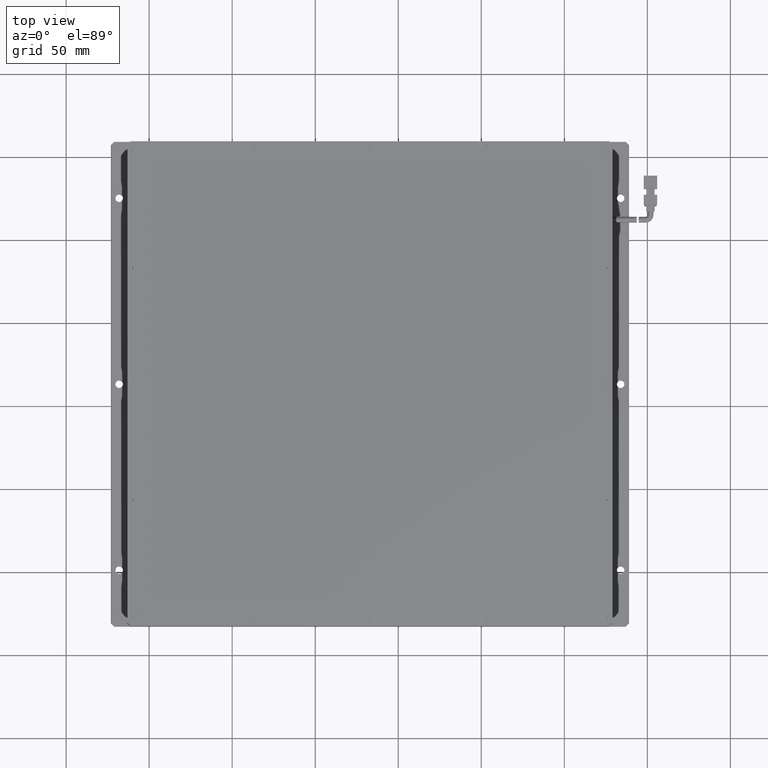
[diagram: clean part render]
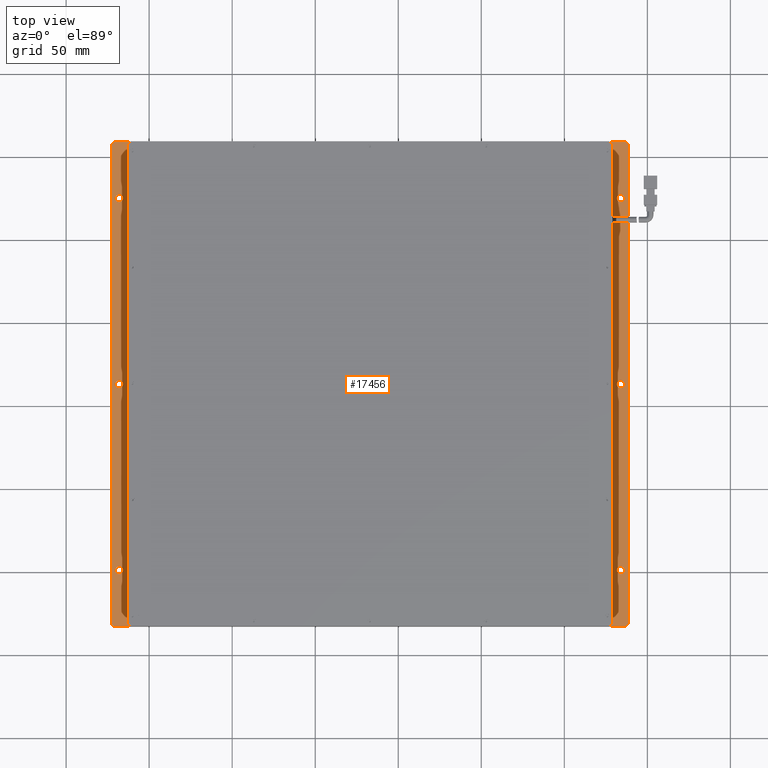
[diagram: same view with one face highlighted and labeled with its STEP entity id]
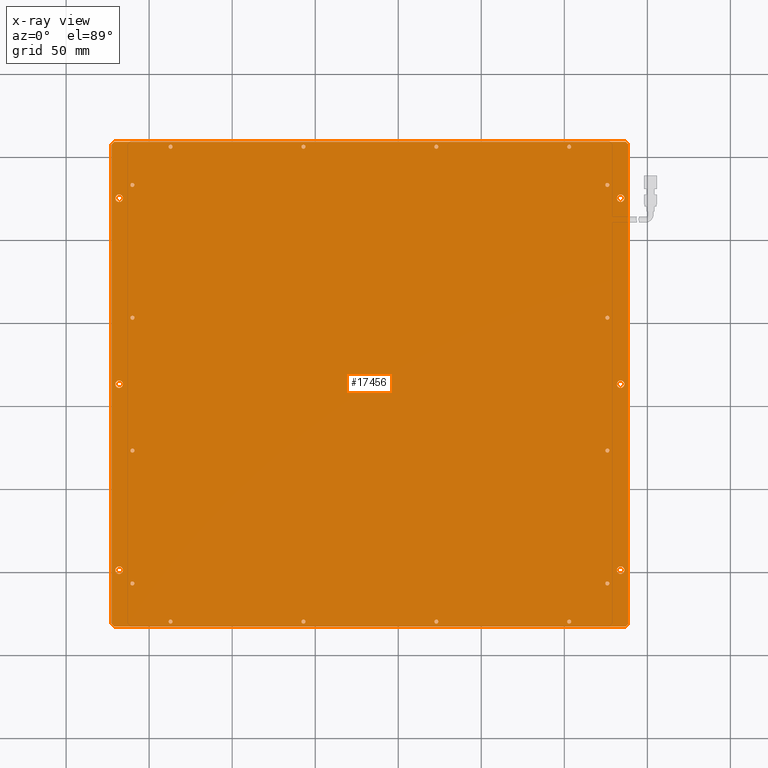
[diagram: x-ray of the same camera — body ghosted, the highlighted face saturated]
A machine part, top view. The second image highlights one B-rep face of the part: STEP entity #17456.
The next image is the same camera in x-ray: the body ghosted, the highlighted face saturated — about 0% of this face is hidden behind the body in this view.
In plain terms, the highlighted planar face has unit normal (0, 0, -1).
Its self-contained STEP definition (entity closure, byte-faithful):
#183 = VERTEX_POINT ( 'NONE', #15705 ) ;
#188 = AXIS2_PLACEMENT_3D ( 'NONE', #7715, #22728, #9895 ) ;
#394 = EDGE_CURVE ( 'NONE', #8376, #27718, #17113, .T. ) ;
#659 = ORIENTED_EDGE ( 'NONE', *, *, #2506, .F. ) ;
#726 = ORIENTED_EDGE ( 'NONE', *, *, #12483, .F. ) ;
#772 = AXIS2_PLACEMENT_3D ( 'NONE', #13796, #907, #15938 ) ;
#907 = DIRECTION ( 'NONE',  ( 0.0000000000000000000, 0.0000000000000000000, 1.000000000000000000 ) ) ;
#963 = VERTEX_POINT ( 'NONE', #26867 ) ;
#1010 = DIRECTION ( 'NONE',  ( 0.0000000000000000000, 0.0000000000000000000, 1.000000000000000000 ) ) ;
#1200 = ORIENTED_EDGE ( 'NONE', *, *, #394, .F. ) ;
#1239 = CARTESIAN_POINT ( 'NONE',  ( -111.2806771263419000, -26.73019543077340300, -8.500000000028194300 ) ) ;
#1253 = EDGE_CURVE ( 'NONE', #14094, #10913, #21665, .T. ) ;
#1269 = EDGE_LOOP ( 'NONE', ( #20714, #23029 ) ) ;
#1420 = CARTESIAN_POINT ( 'NONE',  ( -120.3306771263419000, -98.73019543077346300, -8.500000000028194300 ) ) ;
#1425 = DIRECTION ( 'NONE',  ( -0.0000000000000000000, -0.0000000000000000000, 1.000000000000000000 ) ) ;
#1521 = VERTEX_POINT ( 'NONE', #4793 ) ;
#1529 = DIRECTION ( 'NONE',  ( -1.000000000000000000, 0.0000000000000000000, 0.0000000000000000000 ) ) ;
#1558 = CARTESIAN_POINT ( 'NONE',  ( -88.28067712634189900, 156.2698045692266400, -8.500000000028194300 ) ) ;
#1604 = EDGE_CURVE ( 'NONE', #7886, #26907, #23648, .T. ) ;
#1617 = DIRECTION ( 'NONE',  ( -1.000000000000000000, 0.0000000000000000000, 0.0000000000000000000 ) ) ;
#1664 = CARTESIAN_POINT ( 'NONE',  ( -7.080677126341916100, 156.2698045692266400, -8.500000000028194300 ) ) ;
#1700 = AXIS2_PLACEMENT_3D ( 'NONE', #6667, #21718, #8816 ) ;
#1905 = CARTESIAN_POINT ( 'NONE',  ( 175.9193228736580700, -106.7301954307733900, -8.500000000028194300 ) ) ;
#1918 = DIRECTION ( 'NONE',  ( -1.000000000000000000, 0.0000000000000000000, 0.0000000000000000000 ) ) ;
#2017 = FACE_BOUND ( 'NONE', #9204, .T. ) ;
#2020 = DIRECTION ( 'NONE',  ( 0.0000000000000000000, 0.0000000000000000000, 1.000000000000000000 ) ) ;
#2101 = CIRCLE ( 'NONE', #4096, 2.249999999999988000 ) ;
#2106 = EDGE_LOOP ( 'NONE', ( #726, #8567, #25667, #16701, #22517, #7306, #17643, #14357 ) ) ;
#2196 = DIRECTION ( 'NONE',  ( -1.000000000000000000, 0.0000000000000000000, 0.0000000000000000000 ) ) ;
#2220 = DIRECTION ( 'NONE',  ( -0.0000000000000000000, -1.000000000000000000, -0.0000000000000000000 ) ) ;
#2282 = AXIS2_PLACEMENT_3D ( 'NONE', #24190, #11346, #26347 ) ;
#2292 = DIRECTION ( 'NONE',  ( 0.0000000000000000000, 0.0000000000000000000, 1.000000000000000000 ) ) ;
#2306 = CIRCLE ( 'NONE', #18244, 1.199999999999992600 ) ;
#2339 = CIRCLE ( 'NONE', #8155, 1.199999999999992600 ) ;
#2360 = AXIS2_PLACEMENT_3D ( 'NONE', #14334, #1425, #16472 ) ;
#2379 = CARTESIAN_POINT ( 'NONE',  ( 175.9193228736580700, 133.2698045692266100, -8.500000000028194300 ) ) ;
#2408 = VERTEX_POINT ( 'NONE', #2494 ) ;
#2494 = CARTESIAN_POINT ( 'NONE',  ( 154.1193228736580400, 156.2698045692266400, -8.500000000028194300 ) ) ;
#2506 = EDGE_CURVE ( 'NONE', #9255, #7993, #23895, .T. ) ;
#2680 = FACE_BOUND ( 'NONE', #6416, .T. ) ;
#2719 = AXIS2_PLACEMENT_3D ( 'NONE', #23853, #11002, #26002 ) ;
#2753 = ORIENTED_EDGE ( 'NONE', *, *, #13524, .F. ) ;
#2781 = DIRECTION ( 'NONE',  ( -0.0000000000000000000, -0.0000000000000000000, 1.000000000000000000 ) ) ;
#2783 = AXIS2_PLACEMENT_3D ( 'NONE', #6201, #21252, #8348 ) ;
#2796 = VERTEX_POINT ( 'NONE', #21166 ) ;
#3017 = CARTESIAN_POINT ( 'NONE',  ( -123.0806771263419100, 159.2698045692266400, -8.500000000028196100 ) ) ;
#3109 = DIRECTION ( 'NONE',  ( 0.0000000000000000000, 0.0000000000000000000, 1.000000000000000000 ) ) ;
#3115 = CARTESIAN_POINT ( 'NONE',  ( 181.6693228736581000, 13.26980456922655100, -8.500000000028194300 ) ) ;
#3121 = CARTESIAN_POINT ( 'NONE',  ( 186.9193228736580700, 159.2698045692266900, -8.500000000028196100 ) ) ;
#3222 = DIRECTION ( 'NONE',  ( 0.0000000000000000000, 0.0000000000000000000, 1.000000000000000000 ) ) ;
#3288 = DIRECTION ( 'NONE',  ( 1.000000000000000000, 0.0000000000000000000, 0.0000000000000000000 ) ) ;
#3296 = EDGE_CURVE ( 'NONE', #9677, #23926, #16155, .T. ) ;
#3338 = FACE_BOUND ( 'NONE', #19195, .T. ) ;
#3381 = DIRECTION ( 'NONE',  ( -1.000000000000000000, 0.0000000000000000000, -0.0000000000000000000 ) ) ;
#3468 = EDGE_LOOP ( 'NONE', ( #26339, #20685 ) ) ;
#3487 = DIRECTION ( 'NONE',  ( 0.7071067811865479100, 0.7071067811865472400, 0.0000000000000000000 ) ) ;
#3536 = AXIS2_PLACEMENT_3D ( 'NONE', #6379, #21433, #8529 ) ;
#3551 = ORIENTED_EDGE ( 'NONE', *, *, #18620, .F. ) ;
#3565 = VECTOR ( 'NONE', #22987, 1000.000000000000000 ) ;
#3705 = CARTESIAN_POINT ( 'NONE',  ( 181.6693228736581000, 125.2698045692265400, -8.500000000028194300 ) ) ;
#3774 = CARTESIAN_POINT ( 'NONE',  ( -118.0806771263419100, 13.26980456922663400, -8.500000000028194300 ) ) ;
#3777 = DIRECTION ( 'NONE',  ( -0.0000000000000000000, -0.0000000000000000000, 1.000000000000000000 ) ) ;
#3786 = ORIENTED_EDGE ( 'NONE', *, *, #11152, .F. ) ;
#3796 = DIRECTION ( 'NONE',  ( -1.000000000000000000, 0.0000000000000000000, 0.0000000000000000000 ) ) ;
#4011 = FACE_BOUND ( 'NONE', #26613, .T. ) ;
#4032 = CARTESIAN_POINT ( 'NONE',  ( 186.9193228736580500, -132.7301954307733600, -8.500000000028196100 ) ) ;
#4043 = DIRECTION ( 'NONE',  ( -1.000000000000000000, 0.0000000000000000000, 0.0000000000000000000 ) ) ;
#4096 = AXIS2_PLACEMENT_3D ( 'NONE', #8196, #23209, #10378 ) ;
#4160 = EDGE_CURVE ( 'NONE', #11330, #2408, #20063, .T. ) ;
#4168 = ORIENTED_EDGE ( 'NONE', *, *, #24643, .F. ) ;
#4283 = DIRECTION ( 'NONE',  ( -1.000000000000000000, 0.0000000000000000000, 0.0000000000000000000 ) ) ;
#4691 = EDGE_LOOP ( 'NONE', ( #14891, #10501 ) ) ;
#4722 = ORIENTED_EDGE ( 'NONE', *, *, #24238, .F. ) ;
#4793 = CARTESIAN_POINT ( 'NONE',  ( 174.7193228736580900, -26.73019543077340300, -8.500000000028194300 ) ) ;
#4912 = CARTESIAN_POINT ( 'NONE',  ( -5.880677126341924000, 156.2698045692266400, -8.500000000028194300 ) ) ;
#5127 = EDGE_CURVE ( 'NONE', #21371, #14588, #5588, .T. ) ;
#5137 = CARTESIAN_POINT ( 'NONE',  ( 174.7193228736580900, 53.26980456922658600, -8.500000000028194300 ) ) ;
#5155 = DIRECTION ( 'NONE',  ( -1.000000000000000000, 0.0000000000000000000, -0.0000000000000000000 ) ) ;
#5215 = VECTOR ( 'NONE', #11283, 1000.000000000000000 ) ;
#5345 = FACE_BOUND ( 'NONE', #4691, .T. ) ;
#5377 = CARTESIAN_POINT ( 'NONE',  ( 183.9193228736580700, 125.2698045692265400, -8.500000000028194300 ) ) ;
#5410 = EDGE_CURVE ( 'NONE', #14268, #9067, #21689, .T. ) ;
#5430 = VERTEX_POINT ( 'NONE', #26778 ) ;
#5588 = CIRCLE ( 'NONE', #24032, 2.249999999999974200 ) ;
#5872 = CIRCLE ( 'NONE', #3536, 1.199999999999992600 ) ;
#5876 = DIRECTION ( 'NONE',  ( 1.000000000000000000, 0.0000000000000000000, 0.0000000000000000000 ) ) ;
#5885 = CARTESIAN_POINT ( 'NONE',  ( 177.1193228736580600, 133.2698045692266100, -8.500000000028194300 ) ) ;
#5894 = CARTESIAN_POINT ( 'NONE',  ( -87.08067712634191100, -129.7301954307733600, -8.500000000028194300 ) ) ;
#5930 = DIRECTION ( 'NONE',  ( 1.000000000000000000, 0.0000000000000000000, 0.0000000000000000000 ) ) ;
#5953 = EDGE_CURVE ( 'NONE', #22316, #19056, #9853, .T. ) ;
#6005 = CARTESIAN_POINT ( 'NONE',  ( 175.9193228736580700, -106.7301954307733900, -8.500000000028194300 ) ) ;
#6060 = CARTESIAN_POINT ( 'NONE',  ( -121.0806771263419000, -132.7301954307733600, -8.500000000028196100 ) ) ;
#6065 = DIRECTION ( 'NONE',  ( 0.0000000000000000000, 0.0000000000000000000, 1.000000000000000000 ) ) ;
#6149 = DIRECTION ( 'NONE',  ( 0.0000000000000000000, 0.0000000000000000000, 1.000000000000000000 ) ) ;
#6201 = CARTESIAN_POINT ( 'NONE',  ( 72.91932287365810300, -129.7301954307733600, -8.500000000028194300 ) ) ;
#6250 = CARTESIAN_POINT ( 'NONE',  ( 152.9193228736580500, 156.2698045692266400, -8.500000000028194300 ) ) ;
#6296 = EDGE_CURVE ( 'NONE', #7993, #9255, #16786, .T. ) ;
#6330 = CIRCLE ( 'NONE', #23173, 2.249999999999974200 ) ;
#6379 = CARTESIAN_POINT ( 'NONE',  ( -110.0806771263419100, -106.7301954307733900, -8.500000000028194300 ) ) ;
#6416 = EDGE_LOOP ( 'NONE', ( #1200, #12586 ) ) ;
#6455 = CARTESIAN_POINT ( 'NONE',  ( -118.0806771263419100, -98.73019543077346300, -8.500000000028194300 ) ) ;
#6487 = CARTESIAN_POINT ( 'NONE',  ( 177.1193228736580600, -106.7301954307733900, -8.500000000028194300 ) ) ;
#6566 = CIRCLE ( 'NONE', #2783, 1.199999999999978900 ) ;
#6587 = DIRECTION ( 'NONE',  ( 0.0000000000000000000, 0.0000000000000000000, 1.000000000000000000 ) ) ;
#6667 = CARTESIAN_POINT ( 'NONE',  ( 183.9193228736580700, 13.26980456922655100, -8.500000000028194300 ) ) ;
#6799 = EDGE_LOOP ( 'NONE', ( #3786, #26724 ) ) ;
#6836 = CIRCLE ( 'NONE', #12985, 1.199999999999978900 ) ;
#6951 = CARTESIAN_POINT ( 'NONE',  ( 177.1193228736580600, -26.73019543077340300, -8.500000000028194300 ) ) ;
#7038 = CIRCLE ( 'NONE', #16492, 1.199999999999978900 ) ;
#7065 = CIRCLE ( 'NONE', #19862, 1.199999999999992600 ) ;
#7124 = ORIENTED_EDGE ( 'NONE', *, *, #10925, .F. ) ;
#7199 = VERTEX_POINT ( 'NONE', #1239 ) ;
#7241 = PLANE ( 'NONE',  #25964 ) ;
#7306 = ORIENTED_EDGE ( 'NONE', *, *, #5410, .F. ) ;
#7307 = CIRCLE ( 'NONE', #25976, 1.199999999999978900 ) ;
#7350 = CARTESIAN_POINT ( 'NONE',  ( 188.4193228736579900, 159.2698045692266400, -8.500000000028196100 ) ) ;
#7501 = DIRECTION ( 'NONE',  ( 0.0000000000000000000, 0.0000000000000000000, 1.000000000000000000 ) ) ;
#7539 = DIRECTION ( 'NONE',  ( 1.000000000000000000, 0.0000000000000000000, 0.0000000000000000000 ) ) ;
#7666 = ORIENTED_EDGE ( 'NONE', *, *, #20280, .F. ) ;
#7690 = FACE_BOUND ( 'NONE', #13665, .T. ) ;
#7715 = CARTESIAN_POINT ( 'NONE',  ( -110.0806771263419100, 53.26980456922658600, -8.500000000028194300 ) ) ;
#7773 = CARTESIAN_POINT ( 'NONE',  ( -123.0806771263419100, -132.7301954307733600, -8.500000000028196100 ) ) ;
#7879 = AXIS2_PLACEMENT_3D ( 'NONE', #6005, #16572, #16663 ) ;
#7886 = VERTEX_POINT ( 'NONE', #14640 ) ;
#7890 = DIRECTION ( 'NONE',  ( 0.0000000000000000000, 0.0000000000000000000, 1.000000000000000000 ) ) ;
#7910 = LINE ( 'NONE', #21199, #13715 ) ;
#7993 = VERTEX_POINT ( 'NONE', #5137 ) ;
#8035 = CARTESIAN_POINT ( 'NONE',  ( -120.3306771263419000, 125.2698045692265900, -8.500000000028194300 ) ) ;
#8039 = DIRECTION ( 'NONE',  ( -1.000000000000000000, 0.0000000000000000000, 0.0000000000000000000 ) ) ;
#8081 = CIRCLE ( 'NONE', #11781, 1.199999999999992600 ) ;
#8135 = CIRCLE ( 'NONE', #9470, 1.199999999999992600 ) ;
#8155 = AXIS2_PLACEMENT_3D ( 'NONE', #11954, #26922, #14151 ) ;
#8185 = EDGE_CURVE ( 'NONE', #7199, #27043, #8135, .T. ) ;
#8196 = CARTESIAN_POINT ( 'NONE',  ( -118.0806771263419100, 125.2698045692265900, -8.500000000028194300 ) ) ;
#8217 = ORIENTED_EDGE ( 'NONE', *, *, #17558, .F. ) ;
#8231 = CARTESIAN_POINT ( 'NONE',  ( 174.7193228736580900, -106.7301954307733900, -8.500000000028194300 ) ) ;
#8251 = AXIS2_PLACEMENT_3D ( 'NONE', #14910, #2020, #17052 ) ;
#8263 = CARTESIAN_POINT ( 'NONE',  ( 152.9193228736580500, -129.7301954307733600, -8.500000000028194300 ) ) ;
#8348 = DIRECTION ( 'NONE',  ( -1.000000000000000000, 0.0000000000000000000, 0.0000000000000000000 ) ) ;
#8353 = FACE_BOUND ( 'NONE', #3468, .T. ) ;
#8364 = EDGE_LOOP ( 'NONE', ( #4722, #11121 ) ) ;
#8376 = VERTEX_POINT ( 'NONE', #13369 ) ;
#8378 = CARTESIAN_POINT ( 'NONE',  ( 175.9193228736580700, -26.73019543077340300, -8.500000000028194300 ) ) ;
#8529 = DIRECTION ( 'NONE',  ( -1.000000000000000000, 0.0000000000000000000, 0.0000000000000000000 ) ) ;
#8567 = ORIENTED_EDGE ( 'NONE', *, *, #24589, .F. ) ;
#8610 = DIRECTION ( 'NONE',  ( 1.000000000000000000, 0.0000000000000000000, 0.0000000000000000000 ) ) ;
#8612 = ORIENTED_EDGE ( 'NONE', *, *, #1253, .F. ) ;
#8697 = CARTESIAN_POINT ( 'NONE',  ( -85.88067712634190800, 156.2698045692266400, -8.500000000028194300 ) ) ;
#8792 = CARTESIAN_POINT ( 'NONE',  ( -87.08067712634191100, 156.2698045692266400, -8.500000000028194300 ) ) ;
#8810 = CARTESIAN_POINT ( 'NONE',  ( -122.5806771263419100, -131.2301954307733900, -8.500000000028196100 ) ) ;
#8816 = DIRECTION ( 'NONE',  ( 1.000000000000000000, 0.0000000000000000000, 0.0000000000000000000 ) ) ;
#8850 = VERTEX_POINT ( 'NONE', #25917 ) ;
#8880 = EDGE_LOOP ( 'NONE', ( #17324, #19768 ) ) ;
#8886 = CIRCLE ( 'NONE', #1700, 2.249999999999974200 ) ;
#9015 = CARTESIAN_POINT ( 'NONE',  ( -115.8306771263419100, 13.26980456922663400, -8.500000000028194300 ) ) ;
#9026 = FACE_BOUND ( 'NONE', #11341, .T. ) ;
#9067 = VERTEX_POINT ( 'NONE', #3121 ) ;
#9092 = CARTESIAN_POINT ( 'NONE',  ( -110.0806771263419100, -106.7301954307733900, -8.500000000028194300 ) ) ;
#9204 = EDGE_LOOP ( 'NONE', ( #12340, #9710 ) ) ;
#9205 = ORIENTED_EDGE ( 'NONE', *, *, #10751, .F. ) ;
#9208 = VERTEX_POINT ( 'NONE', #19301 ) ;
#9238 = LINE ( 'NONE', #18562, #15038 ) ;
#9240 = CIRCLE ( 'NONE', #13668, 1.199999999999978900 ) ;
#9255 = VERTEX_POINT ( 'NONE', #23759 ) ;
#9470 = AXIS2_PLACEMENT_3D ( 'NONE', #19016, #6065, #21138 ) ;
#9646 = ORIENTED_EDGE ( 'NONE', *, *, #4160, .F. ) ;
#9677 = VERTEX_POINT ( 'NONE', #5885 ) ;
#9710 = ORIENTED_EDGE ( 'NONE', *, *, #25540, .F. ) ;
#9716 = FACE_BOUND ( 'NONE', #8364, .T. ) ;
#9732 = VERTEX_POINT ( 'NONE', #6060 ) ;
#9775 = VECTOR ( 'NONE', #3381, 1000.000000000000000 ) ;
#9853 = LINE ( 'NONE', #7350, #15610 ) ;
#9895 = DIRECTION ( 'NONE',  ( -1.000000000000000000, 0.0000000000000000000, 0.0000000000000000000 ) ) ;
#9968 = CARTESIAN_POINT ( 'NONE',  ( 175.9193228736580700, 53.26980456922658600, -8.500000000028194300 ) ) ;
#10112 = VERTEX_POINT ( 'NONE', #20366 ) ;
#10129 = CARTESIAN_POINT ( 'NONE',  ( 151.7193228736580900, 156.2698045692266400, -8.500000000028194300 ) ) ;
#10134 = CARTESIAN_POINT ( 'NONE',  ( 188.4193228736579900, -131.2301954307735300, -8.500000000028196100 ) ) ;
#10378 = DIRECTION ( 'NONE',  ( 1.000000000000000000, 0.0000000000000000000, 0.0000000000000000000 ) ) ;
#10403 = FACE_BOUND ( 'NONE', #10537, .T. ) ;
#10439 = DIRECTION ( 'NONE',  ( -1.000000000000000000, 0.0000000000000000000, 0.0000000000000000000 ) ) ;
#10444 = CARTESIAN_POINT ( 'NONE',  ( 186.1693228736580700, 125.2698045692265400, -8.500000000028194300 ) ) ;
#10455 = CIRCLE ( 'NONE', #8251, 1.199999999999992600 ) ;
#10470 = DIRECTION ( 'NONE',  ( 0.0000000000000000000, 1.000000000000000000, 0.0000000000000000000 ) ) ;
#10489 = AXIS2_PLACEMENT_3D ( 'NONE', #2379, #2292, #2196 ) ;
#10501 = ORIENTED_EDGE ( 'NONE', *, *, #14582, .F. ) ;
#10537 = EDGE_LOOP ( 'NONE', ( #16415, #4168 ) ) ;
#10565 = DIRECTION ( 'NONE',  ( -1.000000000000000000, 0.0000000000000000000, 0.0000000000000000000 ) ) ;
#10641 = EDGE_CURVE ( 'NONE', #19039, #8850, #27068, .T. ) ;
#10661 = EDGE_CURVE ( 'NONE', #14588, #21371, #24404, .T. ) ;
#10751 = EDGE_CURVE ( 'NONE', #19754, #27326, #14056, .T. ) ;
#10906 = VERTEX_POINT ( 'NONE', #17229 ) ;
#10913 = VERTEX_POINT ( 'NONE', #6487 ) ;
#10917 = CARTESIAN_POINT ( 'NONE',  ( -122.5806771263419100, 157.7698045692266400, -8.500000000028196100 ) ) ;
#10925 = EDGE_CURVE ( 'NONE', #27815, #18328, #8886, .T. ) ;
#10990 = DIRECTION ( 'NONE',  ( -1.000000000000000000, 0.0000000000000000000, 0.0000000000000000000 ) ) ;
#11002 = DIRECTION ( 'NONE',  ( 0.0000000000000000000, 0.0000000000000000000, 1.000000000000000000 ) ) ;
#11121 = ORIENTED_EDGE ( 'NONE', *, *, #27293, .F. ) ;
#11152 = EDGE_CURVE ( 'NONE', #2796, #24999, #22313, .T. ) ;
#11248 = CARTESIAN_POINT ( 'NONE',  ( -85.88067712634190800, -129.7301954307733600, -8.500000000028194300 ) ) ;
#11283 = DIRECTION ( 'NONE',  ( 1.000000000000000000, -0.0000000000000000000, 0.0000000000000000000 ) ) ;
#11284 = DIRECTION ( 'NONE',  ( -1.000000000000000000, 0.0000000000000000000, 0.0000000000000000000 ) ) ;
#11330 = VERTEX_POINT ( 'NONE', #10129 ) ;
#11341 = EDGE_LOOP ( 'NONE', ( #23664, #659 ) ) ;
#11346 = DIRECTION ( 'NONE',  ( -0.0000000000000000000, -0.0000000000000000000, 1.000000000000000000 ) ) ;
#11403 = CARTESIAN_POINT ( 'NONE',  ( -87.08067712634191100, 156.2698045692266400, -8.500000000028194300 ) ) ;
#11430 = AXIS2_PLACEMENT_3D ( 'NONE', #6250, #6149, #4283 ) ;
#11552 = EDGE_LOOP ( 'NONE', ( #9646, #13995 ) ) ;
#11772 = CARTESIAN_POINT ( 'NONE',  ( 154.1193228736580400, -129.7301954307733600, -8.500000000028194300 ) ) ;
#11781 = AXIS2_PLACEMENT_3D ( 'NONE', #11403, #26405, #13608 ) ;
#11792 = ORIENTED_EDGE ( 'NONE', *, *, #12433, .F. ) ;
#11814 = CARTESIAN_POINT ( 'NONE',  ( -7.080677126341916100, 156.2698045692266400, -8.500000000028194300 ) ) ;
#11820 = ORIENTED_EDGE ( 'NONE', *, *, #15349, .F. ) ;
#11833 = VERTEX_POINT ( 'NONE', #1558 ) ;
#11866 = AXIS2_PLACEMENT_3D ( 'NONE', #1664, #16709, #3796 ) ;
#11943 = CARTESIAN_POINT ( 'NONE',  ( 175.9193228736580700, -26.73019543077340300, -8.500000000028194300 ) ) ;
#11954 = CARTESIAN_POINT ( 'NONE',  ( -7.080677126341916100, -129.7301954307733600, -8.500000000028194300 ) ) ;
#12063 = DIRECTION ( 'NONE',  ( 0.0000000000000000000, 0.0000000000000000000, 1.000000000000000000 ) ) ;
#12280 = EDGE_LOOP ( 'NONE', ( #9205, #19672 ) ) ;
#12281 = EDGE_LOOP ( 'NONE', ( #16717, #11820 ) ) ;
#12340 = ORIENTED_EDGE ( 'NONE', *, *, #1604, .F. ) ;
#12433 = EDGE_CURVE ( 'NONE', #23926, #9677, #7038, .T. ) ;
#12483 = EDGE_CURVE ( 'NONE', #9732, #15149, #26506, .T. ) ;
#12508 = CARTESIAN_POINT ( 'NONE',  ( 188.4193228736579900, -131.2301954307736200, -8.500000000028185500 ) ) ;
#12586 = ORIENTED_EDGE ( 'NONE', *, *, #19545, .F. ) ;
#12597 = EDGE_CURVE ( 'NONE', #9208, #27668, #15464, .T. ) ;
#12613 = VERTEX_POINT ( 'NONE', #8697 ) ;
#12656 = CARTESIAN_POINT ( 'NONE',  ( -8.280677126341910100, -129.7301954307733600, -8.500000000028194300 ) ) ;
#12711 = AXIS2_PLACEMENT_3D ( 'NONE', #16034, #3109, #18193 ) ;
#12985 = AXIS2_PLACEMENT_3D ( 'NONE', #8263, #23268, #10439 ) ;
#13007 = CIRCLE ( 'NONE', #24211, 1.199999999999992600 ) ;
#13369 = CARTESIAN_POINT ( 'NONE',  ( -115.8306771263419100, 125.2698045692265900, -8.500000000028194300 ) ) ;
#13395 = EDGE_CURVE ( 'NONE', #8850, #19039, #13007, .T. ) ;
#13473 = FACE_BOUND ( 'NONE', #8880, .T. ) ;
#13504 = AXIS2_PLACEMENT_3D ( 'NONE', #27284, #14510, #1617 ) ;
#13524 = EDGE_CURVE ( 'NONE', #19821, #963, #5872, .T. ) ;
#13528 = CARTESIAN_POINT ( 'NONE',  ( -118.0806771263419100, 125.2698045692265900, -8.500000000028194300 ) ) ;
#13608 = DIRECTION ( 'NONE',  ( -1.000000000000000000, 0.0000000000000000000, 0.0000000000000000000 ) ) ;
#13650 = DIRECTION ( 'NONE',  ( 0.7071067811865606700, -0.7071067811865344700, 0.0000000000000000000 ) ) ;
#13660 = CARTESIAN_POINT ( 'NONE',  ( -8.280677126341910100, 156.2698045692266400, -8.500000000028194300 ) ) ;
#13665 = EDGE_LOOP ( 'NONE', ( #7124, #26327 ) ) ;
#13668 = AXIS2_PLACEMENT_3D ( 'NONE', #1905, #16929, #4043 ) ;
#13686 = DIRECTION ( 'NONE',  ( -0.0000000000000000000, -0.0000000000000000000, 1.000000000000000000 ) ) ;
#13715 = VECTOR ( 'NONE', #10470, 1000.000000000000000 ) ;
#13796 = CARTESIAN_POINT ( 'NONE',  ( -7.080677126341916100, -129.7301954307733600, -8.500000000028194300 ) ) ;
#13908 = CARTESIAN_POINT ( 'NONE',  ( -110.0806771263419100, 133.2698045692266100, -8.500000000028194300 ) ) ;
#13989 = DIRECTION ( 'NONE',  ( -1.000000000000000000, 0.0000000000000000000, 0.0000000000000000000 ) ) ;
#13994 = CIRCLE ( 'NONE', #2719, 1.199999999999978900 ) ;
#13995 = ORIENTED_EDGE ( 'NONE', *, *, #19980, .F. ) ;
#14029 = DIRECTION ( 'NONE',  ( -1.000000000000000000, 0.0000000000000000000, 0.0000000000000000000 ) ) ;
#14056 = CIRCLE ( 'NONE', #14336, 2.249999999999988000 ) ;
#14094 = VERTEX_POINT ( 'NONE', #8231 ) ;
#14147 = DIRECTION ( 'NONE',  ( -1.000000000000000000, 0.0000000000000000000, 0.0000000000000000000 ) ) ;
#14151 = DIRECTION ( 'NONE',  ( -1.000000000000000000, 0.0000000000000000000, 0.0000000000000000000 ) ) ;
#14156 = FACE_BOUND ( 'NONE', #1269, .T. ) ;
#14165 = AXIS2_PLACEMENT_3D ( 'NONE', #3774, #18863, #5930 ) ;
#14268 = VERTEX_POINT ( 'NONE', #26060 ) ;
#14334 = CARTESIAN_POINT ( 'NONE',  ( -118.0806771263419100, -98.73019543077346300, -8.500000000028194300 ) ) ;
#14336 = AXIS2_PLACEMENT_3D ( 'NONE', #16685, #3777, #18866 ) ;
#14357 = ORIENTED_EDGE ( 'NONE', *, *, #22558, .F. ) ;
#14425 = DIRECTION ( 'NONE',  ( 0.0000000000000000000, 0.0000000000000000000, 1.000000000000000000 ) ) ;
#14469 = VERTEX_POINT ( 'NONE', #24377 ) ;
#14502 = VERTEX_POINT ( 'NONE', #24834 ) ;
#14510 = DIRECTION ( 'NONE',  ( 0.0000000000000000000, 0.0000000000000000000, 1.000000000000000000 ) ) ;
#14512 = CIRCLE ( 'NONE', #188, 1.199999999999992600 ) ;
#14582 = EDGE_CURVE ( 'NONE', #21056, #23299, #20919, .T. ) ;
#14588 = VERTEX_POINT ( 'NONE', #3705 ) ;
#14604 = DIRECTION ( 'NONE',  ( -0.7071067811865520100, 0.7071067811865431300, 0.0000000000000000000 ) ) ;
#14640 = CARTESIAN_POINT ( 'NONE',  ( 186.1693228736580700, -98.73019543077344900, -8.500000000028194300 ) ) ;
#14816 = DIRECTION ( 'NONE',  ( 0.0000000000000000000, 0.0000000000000000000, 1.000000000000000000 ) ) ;
#14824 = FACE_BOUND ( 'NONE', #18635, .T. ) ;
#14867 = EDGE_CURVE ( 'NONE', #5430, #10112, #14512, .T. ) ;
#14891 = ORIENTED_EDGE ( 'NONE', *, *, #19398, .F. ) ;
#14910 = CARTESIAN_POINT ( 'NONE',  ( -110.0806771263419100, 53.26980456922658600, -8.500000000028194300 ) ) ;
#14970 = ORIENTED_EDGE ( 'NONE', *, *, #15193, .F. ) ;
#15038 = VECTOR ( 'NONE', #3487, 1000.000000000000000 ) ;
#15045 = EDGE_CURVE ( 'NONE', #10112, #5430, #10455, .T. ) ;
#15047 = EDGE_LOOP ( 'NONE', ( #7666, #22891 ) ) ;
#15149 = VERTEX_POINT ( 'NONE', #8810 ) ;
#15152 = VECTOR ( 'NONE', #14604, 1000.000000000000000 ) ;
#15193 = EDGE_CURVE ( 'NONE', #963, #19821, #17519, .T. ) ;
#15349 = EDGE_CURVE ( 'NONE', #27668, #9208, #18040, .T. ) ;
#15464 = CIRCLE ( 'NONE', #23090, 2.249999999999988000 ) ;
#15469 = AXIS2_PLACEMENT_3D ( 'NONE', #20418, #7501, #22523 ) ;
#15484 = FACE_BOUND ( 'NONE', #24341, .T. ) ;
#15610 = VECTOR ( 'NONE', #2220, 1000.000000000000000 ) ;
#15675 = CARTESIAN_POINT ( 'NONE',  ( 183.9193228736580700, -98.73019543077344900, -8.500000000028194300 ) ) ;
#15705 = CARTESIAN_POINT ( 'NONE',  ( -5.880677126341924000, -129.7301954307733600, -8.500000000028194300 ) ) ;
#15747 = EDGE_CURVE ( 'NONE', #20246, #20792, #13994, .T. ) ;
#15938 = DIRECTION ( 'NONE',  ( -1.000000000000000000, 0.0000000000000000000, 0.0000000000000000000 ) ) ;
#15981 = CARTESIAN_POINT ( 'NONE',  ( 188.4193228736579900, 157.7698045692267200, -8.500000000028197900 ) ) ;
#16034 = CARTESIAN_POINT ( 'NONE',  ( -87.08067712634191100, -129.7301954307733600, -8.500000000028194300 ) ) ;
#16065 = DIRECTION ( 'NONE',  ( -1.000000000000000000, 0.0000000000000000000, 0.0000000000000000000 ) ) ;
#16155 = CIRCLE ( 'NONE', #10489, 1.199999999999978900 ) ;
#16281 = AXIS2_PLACEMENT_3D ( 'NONE', #13908, #1010, #16065 ) ;
#16407 = AXIS2_PLACEMENT_3D ( 'NONE', #9092, #24124, #11284 ) ;
#16415 = ORIENTED_EDGE ( 'NONE', *, *, #15747, .F. ) ;
#16472 = DIRECTION ( 'NONE',  ( 1.000000000000000000, 0.0000000000000000000, 0.0000000000000000000 ) ) ;
#16492 = AXIS2_PLACEMENT_3D ( 'NONE', #27196, #14425, #1529 ) ;
#16520 = CIRCLE ( 'NONE', #14165, 2.249999999999988000 ) ;
#16572 = DIRECTION ( 'NONE',  ( 0.0000000000000000000, 0.0000000000000000000, 1.000000000000000000 ) ) ;
#16595 = ORIENTED_EDGE ( 'NONE', *, *, #21699, .F. ) ;
#16619 = CARTESIAN_POINT ( 'NONE',  ( 175.9193228736580700, 53.26980456922658600, -8.500000000028194300 ) ) ;
#16652 = ORIENTED_EDGE ( 'NONE', *, *, #8185, .F. ) ;
#16663 = DIRECTION ( 'NONE',  ( -1.000000000000000000, 0.0000000000000000000, 0.0000000000000000000 ) ) ;
#16685 = CARTESIAN_POINT ( 'NONE',  ( -118.0806771263419100, 13.26980456922663400, -8.500000000028194300 ) ) ;
#16701 = ORIENTED_EDGE ( 'NONE', *, *, #5953, .F. ) ;
#16709 = DIRECTION ( 'NONE',  ( 0.0000000000000000000, 0.0000000000000000000, 1.000000000000000000 ) ) ;
#16717 = ORIENTED_EDGE ( 'NONE', *, *, #12597, .F. ) ;
#16786 = CIRCLE ( 'NONE', #26933, 1.199999999999978900 ) ;
#16929 = DIRECTION ( 'NONE',  ( 0.0000000000000000000, 0.0000000000000000000, 1.000000000000000000 ) ) ;
#16985 = EDGE_CURVE ( 'NONE', #12613, #11833, #8081, .T. ) ;
#17052 = DIRECTION ( 'NONE',  ( -1.000000000000000000, 0.0000000000000000000, 0.0000000000000000000 ) ) ;
#17113 = CIRCLE ( 'NONE', #17824, 2.249999999999988000 ) ;
#17143 = EDGE_CURVE ( 'NONE', #27326, #19754, #16520, .T. ) ;
#17209 = CARTESIAN_POINT ( 'NONE',  ( 71.71932287365811500, 156.2698045692266400, -8.500000000028194300 ) ) ;
#17223 = CIRCLE ( 'NONE', #772, 1.199999999999992600 ) ;
#17229 = CARTESIAN_POINT ( 'NONE',  ( 74.11932287365807800, -129.7301954307733600, -8.500000000028194300 ) ) ;
#17324 = ORIENTED_EDGE ( 'NONE', *, *, #5127, .F. ) ;
#17402 = VERTEX_POINT ( 'NONE', #6951 ) ;
#17441 = CARTESIAN_POINT ( 'NONE',  ( 181.6693228736581000, -98.73019543077344900, -8.500000000028194300 ) ) ;
#17456 = ADVANCED_FACE ( 'NONE', ( #21175, #10403, #5345, #26843, #15484, #9716, #4011, #26168, #20515, #14824, #9026, #3338, #25486, #19833, #14156, #8353, #2680, #24831, #19186, #13473, #7690, #2017, #24156 ), #7241, .F. ) ;
#17519 = CIRCLE ( 'NONE', #16407, 1.199999999999992600 ) ;
#17558 = EDGE_CURVE ( 'NONE', #183, #24218, #2339, .T. ) ;
#17643 = ORIENTED_EDGE ( 'NONE', *, *, #27236, .F. ) ;
#17646 = CARTESIAN_POINT ( 'NONE',  ( 183.9193228736580700, 125.2698045692265400, -8.500000000028194300 ) ) ;
#17785 = ORIENTED_EDGE ( 'NONE', *, *, #22577, .F. ) ;
#17809 = VERTEX_POINT ( 'NONE', #4032 ) ;
#17823 = CARTESIAN_POINT ( 'NONE',  ( -111.2806771263419000, -106.7301954307733900, -8.500000000028194300 ) ) ;
#17824 = AXIS2_PLACEMENT_3D ( 'NONE', #13528, #13686, #3288 ) ;
#17833 = DIRECTION ( 'NONE',  ( 1.000000000000000000, 0.0000000000000000000, 0.0000000000000000000 ) ) ;
#17936 = CIRCLE ( 'NONE', #25101, 1.199999999999978900 ) ;
#18040 = CIRCLE ( 'NONE', #2360, 2.249999999999988000 ) ;
#18044 = EDGE_CURVE ( 'NONE', #18328, #27815, #25756, .T. ) ;
#18067 = AXIS2_PLACEMENT_3D ( 'NONE', #24886, #12063, #27025 ) ;
#18086 = DIRECTION ( 'NONE',  ( 0.0000000000000000000, 0.0000000000000000000, -1.000000000000000000 ) ) ;
#18193 = DIRECTION ( 'NONE',  ( -1.000000000000000000, 0.0000000000000000000, 0.0000000000000000000 ) ) ;
#18244 = AXIS2_PLACEMENT_3D ( 'NONE', #20808, #7890, #22894 ) ;
#18328 = VERTEX_POINT ( 'NONE', #3115 ) ;
#18392 = CARTESIAN_POINT ( 'NONE',  ( 174.7193228736580900, 133.2698045692266100, -8.500000000028194300 ) ) ;
#18404 = DIRECTION ( 'NONE',  ( 0.0000000000000000000, 0.0000000000000000000, 1.000000000000000000 ) ) ;
#18423 = CIRCLE ( 'NONE', #19745, 1.199999999999992600 ) ;
#18528 = EDGE_CURVE ( 'NONE', #19056, #17809, #25710, .T. ) ;
#18562 = CARTESIAN_POINT ( 'NONE',  ( -122.5806771263419100, 157.7698045692266400, -8.500000000028196100 ) ) ;
#18568 = CIRCLE ( 'NONE', #13504, 1.199999999999978900 ) ;
#18620 = EDGE_CURVE ( 'NONE', #10913, #14094, #9240, .T. ) ;
#18635 = EDGE_LOOP ( 'NONE', ( #17785, #16595 ) ) ;
#18716 = EDGE_LOOP ( 'NONE', ( #8612, #3551 ) ) ;
#18817 = CARTESIAN_POINT ( 'NONE',  ( -111.2806771263419000, 133.2698045692266100, -8.500000000028194300 ) ) ;
#18863 = DIRECTION ( 'NONE',  ( -0.0000000000000000000, -0.0000000000000000000, 1.000000000000000000 ) ) ;
#18866 = DIRECTION ( 'NONE',  ( 1.000000000000000000, 0.0000000000000000000, 0.0000000000000000000 ) ) ;
#18955 = CIRCLE ( 'NONE', #26749, 1.199999999999992600 ) ;
#19016 = CARTESIAN_POINT ( 'NONE',  ( -110.0806771263419100, -26.73019543077340300, -8.500000000028194300 ) ) ;
#19039 = VERTEX_POINT ( 'NONE', #18817 ) ;
#19056 = VERTEX_POINT ( 'NONE', #12508 ) ;
#19186 = FACE_BOUND ( 'NONE', #12281, .T. ) ;
#19195 = EDGE_LOOP ( 'NONE', ( #11792, #27308 ) ) ;
#19217 = CARTESIAN_POINT ( 'NONE',  ( -120.3306771263419000, 13.26980456922663400, -8.500000000028194300 ) ) ;
#19301 = CARTESIAN_POINT ( 'NONE',  ( -115.8306771263419100, -98.73019543077346300, -8.500000000028194300 ) ) ;
#19398 = EDGE_CURVE ( 'NONE', #23299, #21056, #18955, .T. ) ;
#19508 = CARTESIAN_POINT ( 'NONE',  ( 72.91932287365810300, -129.7301954307733600, -8.500000000028194300 ) ) ;
#19545 = EDGE_CURVE ( 'NONE', #27718, #8376, #2101, .T. ) ;
#19672 = ORIENTED_EDGE ( 'NONE', *, *, #17143, .F. ) ;
#19745 = AXIS2_PLACEMENT_3D ( 'NONE', #5894, #20951, #8039 ) ;
#19754 = VERTEX_POINT ( 'NONE', #9015 ) ;
#19768 = ORIENTED_EDGE ( 'NONE', *, *, #10661, .F. ) ;
#19821 = VERTEX_POINT ( 'NONE', #17823 ) ;
#19833 = FACE_BOUND ( 'NONE', #25255, .T. ) ;
#19862 = AXIS2_PLACEMENT_3D ( 'NONE', #8792, #23840, #10990 ) ;
#19864 = EDGE_CURVE ( 'NONE', #24218, #183, #17223, .T. ) ;
#19980 = EDGE_CURVE ( 'NONE', #2408, #11330, #22545, .T. ) ;
#20063 = CIRCLE ( 'NONE', #11430, 1.199999999999978900 ) ;
#20246 = VERTEX_POINT ( 'NONE', #17209 ) ;
#20280 = EDGE_CURVE ( 'NONE', #11833, #12613, #7065, .T. ) ;
#20366 = CARTESIAN_POINT ( 'NONE',  ( -111.2806771263419000, 53.26980456922658600, -8.500000000028194300 ) ) ;
#20418 = CARTESIAN_POINT ( 'NONE',  ( 152.9193228736580500, -129.7301954307733600, -8.500000000028194300 ) ) ;
#20460 = DIRECTION ( 'NONE',  ( -0.0000000000000000000, -0.0000000000000000000, 1.000000000000000000 ) ) ;
#20515 = FACE_BOUND ( 'NONE', #18716, .T. ) ;
#20685 = ORIENTED_EDGE ( 'NONE', *, *, #13395, .F. ) ;
#20704 = CARTESIAN_POINT ( 'NONE',  ( 183.9193228736580700, -98.73019543077344900, -8.500000000028194300 ) ) ;
#20714 = ORIENTED_EDGE ( 'NONE', *, *, #15045, .F. ) ;
#20792 = VERTEX_POINT ( 'NONE', #20837 ) ;
#20800 = DIRECTION ( 'NONE',  ( -0.0000000000000000000, -0.0000000000000000000, 1.000000000000000000 ) ) ;
#20808 = CARTESIAN_POINT ( 'NONE',  ( -110.0806771263419100, -26.73019543077340300, -8.500000000028194300 ) ) ;
#20837 = CARTESIAN_POINT ( 'NONE',  ( 74.11932287365807800, 156.2698045692266400, -8.500000000028194300 ) ) ;
#20889 = DIRECTION ( 'NONE',  ( 1.000000000000000000, 0.0000000000000000000, 0.0000000000000000000 ) ) ;
#20908 = CIRCLE ( 'NONE', #15469, 1.199999999999978900 ) ;
#20919 = CIRCLE ( 'NONE', #11866, 1.199999999999992600 ) ;
#20951 = DIRECTION ( 'NONE',  ( 0.0000000000000000000, 0.0000000000000000000, 1.000000000000000000 ) ) ;
#21033 = DIRECTION ( 'NONE',  ( -0.0000000000000000000, -0.0000000000000000000, 1.000000000000000000 ) ) ;
#21056 = VERTEX_POINT ( 'NONE', #4912 ) ;
#21138 = DIRECTION ( 'NONE',  ( -1.000000000000000000, 0.0000000000000000000, 0.0000000000000000000 ) ) ;
#21166 = CARTESIAN_POINT ( 'NONE',  ( -88.28067712634189900, -129.7301954307733600, -8.500000000028194300 ) ) ;
#21175 = FACE_BOUND ( 'NONE', #11552, .T. ) ;
#21181 = LINE ( 'NONE', #24193, #26849 ) ;
#21196 = ORIENTED_EDGE ( 'NONE', *, *, #25707, .F. ) ;
#21199 = CARTESIAN_POINT ( 'NONE',  ( -122.5806771263419100, 159.2698045692266400, -8.500000000028196100 ) ) ;
#21252 = DIRECTION ( 'NONE',  ( 0.0000000000000000000, 0.0000000000000000000, 1.000000000000000000 ) ) ;
#21345 = CARTESIAN_POINT ( 'NONE',  ( -123.0806771263419100, 159.2698045692266400, -8.500000000028196100 ) ) ;
#21371 = VERTEX_POINT ( 'NONE', #10444 ) ;
#21415 = ORIENTED_EDGE ( 'NONE', *, *, #23111, .F. ) ;
#21433 = DIRECTION ( 'NONE',  ( 0.0000000000000000000, 0.0000000000000000000, 1.000000000000000000 ) ) ;
#21506 = DIRECTION ( 'NONE',  ( -0.0000000000000000000, -0.0000000000000000000, 1.000000000000000000 ) ) ;
#21615 = DIRECTION ( 'NONE',  ( -1.000000000000000000, 0.0000000000000000000, 0.0000000000000000000 ) ) ;
#21665 = CIRCLE ( 'NONE', #7879, 1.199999999999978900 ) ;
#21689 = LINE ( 'NONE', #21345, #5215 ) ;
#21699 = EDGE_CURVE ( 'NONE', #17402, #1521, #7307, .T. ) ;
#21718 = DIRECTION ( 'NONE',  ( -0.0000000000000000000, -0.0000000000000000000, 1.000000000000000000 ) ) ;
#21782 = EDGE_CURVE ( 'NONE', #24999, #2796, #18423, .T. ) ;
#22313 = CIRCLE ( 'NONE', #12711, 1.199999999999992600 ) ;
#22316 = VERTEX_POINT ( 'NONE', #15981 ) ;
#22517 = ORIENTED_EDGE ( 'NONE', *, *, #25030, .F. ) ;
#22523 = DIRECTION ( 'NONE',  ( -1.000000000000000000, 0.0000000000000000000, 0.0000000000000000000 ) ) ;
#22545 = CIRCLE ( 'NONE', #18067, 1.199999999999978900 ) ;
#22558 = EDGE_CURVE ( 'NONE', #15149, #24284, #7910, .T. ) ;
#22577 = EDGE_CURVE ( 'NONE', #1521, #17402, #24395, .T. ) ;
#22728 = DIRECTION ( 'NONE',  ( 0.0000000000000000000, 0.0000000000000000000, 1.000000000000000000 ) ) ;
#22891 = ORIENTED_EDGE ( 'NONE', *, *, #16985, .F. ) ;
#22894 = DIRECTION ( 'NONE',  ( -1.000000000000000000, 0.0000000000000000000, 0.0000000000000000000 ) ) ;
#22987 = DIRECTION ( 'NONE',  ( -0.7071067811865736600, -0.7071067811865213700, 0.0000000000000000000 ) ) ;
#23029 = ORIENTED_EDGE ( 'NONE', *, *, #14867, .F. ) ;
#23090 = AXIS2_PLACEMENT_3D ( 'NONE', #6455, #21506, #8610 ) ;
#23111 = EDGE_CURVE ( 'NONE', #14469, #24523, #6836, .T. ) ;
#23173 = AXIS2_PLACEMENT_3D ( 'NONE', #15675, #2781, #17833 ) ;
#23209 = DIRECTION ( 'NONE',  ( -0.0000000000000000000, -0.0000000000000000000, 1.000000000000000000 ) ) ;
#23214 = AXIS2_PLACEMENT_3D ( 'NONE', #9968, #3222, #27299 ) ;
#23268 = DIRECTION ( 'NONE',  ( 0.0000000000000000000, 0.0000000000000000000, 1.000000000000000000 ) ) ;
#23295 = AXIS2_PLACEMENT_3D ( 'NONE', #8378, #23406, #10565 ) ;
#23299 = VERTEX_POINT ( 'NONE', #13660 ) ;
#23406 = DIRECTION ( 'NONE',  ( 0.0000000000000000000, 0.0000000000000000000, 1.000000000000000000 ) ) ;
#23648 = CIRCLE ( 'NONE', #24634, 2.249999999999974200 ) ;
#23664 = ORIENTED_EDGE ( 'NONE', *, *, #6296, .F. ) ;
#23759 = CARTESIAN_POINT ( 'NONE',  ( 177.1193228736580600, 53.26980456922658600, -8.500000000028194300 ) ) ;
#23840 = DIRECTION ( 'NONE',  ( 0.0000000000000000000, 0.0000000000000000000, 1.000000000000000000 ) ) ;
#23853 = CARTESIAN_POINT ( 'NONE',  ( 72.91932287365810300, 156.2698045692266400, -8.500000000028194300 ) ) ;
#23895 = CIRCLE ( 'NONE', #23214, 1.199999999999978900 ) ;
#23926 = VERTEX_POINT ( 'NONE', #18392 ) ;
#24032 = AXIS2_PLACEMENT_3D ( 'NONE', #17646, #21033, #5876 ) ;
#24124 = DIRECTION ( 'NONE',  ( 0.0000000000000000000, 0.0000000000000000000, 1.000000000000000000 ) ) ;
#24156 = FACE_OUTER_BOUND ( 'NONE', #2106, .T. ) ;
#24190 = CARTESIAN_POINT ( 'NONE',  ( 183.9193228736580700, 13.26980456922655100, -8.500000000028194300 ) ) ;
#24193 = CARTESIAN_POINT ( 'NONE',  ( 186.9193228736580500, 159.2698045692266900, -8.500000000028196100 ) ) ;
#24211 = AXIS2_PLACEMENT_3D ( 'NONE', #27583, #14816, #1918 ) ;
#24218 = VERTEX_POINT ( 'NONE', #12656 ) ;
#24238 = EDGE_CURVE ( 'NONE', #14502, #10906, #17936, .T. ) ;
#24284 = VERTEX_POINT ( 'NONE', #10917 ) ;
#24341 = EDGE_LOOP ( 'NONE', ( #21415, #25257 ) ) ;
#24377 = CARTESIAN_POINT ( 'NONE',  ( 151.7193228736580900, -129.7301954307733600, -8.500000000028194300 ) ) ;
#24395 = CIRCLE ( 'NONE', #23295, 1.199999999999978900 ) ;
#24404 = CIRCLE ( 'NONE', #24870, 2.249999999999974200 ) ;
#24517 = EDGE_CURVE ( 'NONE', #24523, #14469, #20908, .T. ) ;
#24523 = VERTEX_POINT ( 'NONE', #11772 ) ;
#24589 = EDGE_CURVE ( 'NONE', #17809, #9732, #26893, .T. ) ;
#24634 = AXIS2_PLACEMENT_3D ( 'NONE', #20704, #20800, #20889 ) ;
#24643 = EDGE_CURVE ( 'NONE', #20792, #20246, #18568, .T. ) ;
#24831 = FACE_BOUND ( 'NONE', #12280, .T. ) ;
#24834 = CARTESIAN_POINT ( 'NONE',  ( 71.71932287365811500, -129.7301954307733600, -8.500000000028194300 ) ) ;
#24844 = ORIENTED_EDGE ( 'NONE', *, *, #19864, .F. ) ;
#24870 = AXIS2_PLACEMENT_3D ( 'NONE', #5377, #20460, #7539 ) ;
#24886 = CARTESIAN_POINT ( 'NONE',  ( 152.9193228736580500, 156.2698045692266400, -8.500000000028194300 ) ) ;
#24999 = VERTEX_POINT ( 'NONE', #11248 ) ;
#25030 = EDGE_CURVE ( 'NONE', #9067, #22316, #21181, .T. ) ;
#25101 = AXIS2_PLACEMENT_3D ( 'NONE', #19508, #6587, #21615 ) ;
#25225 = CARTESIAN_POINT ( 'NONE',  ( -121.0806771263419000, -132.7301954307733600, -8.500000000028196100 ) ) ;
#25255 = EDGE_LOOP ( 'NONE', ( #16652, #21196 ) ) ;
#25257 = ORIENTED_EDGE ( 'NONE', *, *, #24517, .F. ) ;
#25486 = FACE_BOUND ( 'NONE', #25621, .T. ) ;
#25540 = EDGE_CURVE ( 'NONE', #26907, #7886, #6330, .T. ) ;
#25582 = CARTESIAN_POINT ( 'NONE',  ( 186.1693228736580700, 13.26980456922655100, -8.500000000028194300 ) ) ;
#25621 = EDGE_LOOP ( 'NONE', ( #2753, #14970 ) ) ;
#25667 = ORIENTED_EDGE ( 'NONE', *, *, #18528, .F. ) ;
#25707 = EDGE_CURVE ( 'NONE', #27043, #7199, #2306, .T. ) ;
#25710 = LINE ( 'NONE', #10134, #3565 ) ;
#25756 = CIRCLE ( 'NONE', #2282, 2.249999999999974200 ) ;
#25917 = CARTESIAN_POINT ( 'NONE',  ( -108.8806771263419200, 133.2698045692266100, -8.500000000028194300 ) ) ;
#25964 = AXIS2_PLACEMENT_3D ( 'NONE', #3017, #18086, #5155 ) ;
#25976 = AXIS2_PLACEMENT_3D ( 'NONE', #11943, #26916, #14147 ) ;
#26002 = DIRECTION ( 'NONE',  ( -1.000000000000000000, 0.0000000000000000000, 0.0000000000000000000 ) ) ;
#26060 = CARTESIAN_POINT ( 'NONE',  ( -121.0806771263419100, 159.2698045692266400, -8.500000000028196100 ) ) ;
#26168 = FACE_BOUND ( 'NONE', #6799, .T. ) ;
#26327 = ORIENTED_EDGE ( 'NONE', *, *, #18044, .F. ) ;
#26339 = ORIENTED_EDGE ( 'NONE', *, *, #10641, .F. ) ;
#26347 = DIRECTION ( 'NONE',  ( 1.000000000000000000, 0.0000000000000000000, 0.0000000000000000000 ) ) ;
#26399 = CARTESIAN_POINT ( 'NONE',  ( -108.8806771263419200, -26.73019543077340300, -8.500000000028194300 ) ) ;
#26405 = DIRECTION ( 'NONE',  ( 0.0000000000000000000, 0.0000000000000000000, 1.000000000000000000 ) ) ;
#26506 = LINE ( 'NONE', #25225, #15152 ) ;
#26613 = EDGE_LOOP ( 'NONE', ( #24844, #8217 ) ) ;
#26724 = ORIENTED_EDGE ( 'NONE', *, *, #21782, .F. ) ;
#26749 = AXIS2_PLACEMENT_3D ( 'NONE', #11814, #26789, #14029 ) ;
#26778 = CARTESIAN_POINT ( 'NONE',  ( -108.8806771263419200, 53.26980456922658600, -8.500000000028194300 ) ) ;
#26789 = DIRECTION ( 'NONE',  ( 0.0000000000000000000, 0.0000000000000000000, 1.000000000000000000 ) ) ;
#26843 = FACE_BOUND ( 'NONE', #15047, .T. ) ;
#26849 = VECTOR ( 'NONE', #13650, 1000.000000000000000 ) ;
#26867 = CARTESIAN_POINT ( 'NONE',  ( -108.8806771263419200, -106.7301954307733900, -8.500000000028194300 ) ) ;
#26893 = LINE ( 'NONE', #7773, #9775 ) ;
#26907 = VERTEX_POINT ( 'NONE', #17441 ) ;
#26916 = DIRECTION ( 'NONE',  ( 0.0000000000000000000, 0.0000000000000000000, 1.000000000000000000 ) ) ;
#26922 = DIRECTION ( 'NONE',  ( 0.0000000000000000000, 0.0000000000000000000, 1.000000000000000000 ) ) ;
#26933 = AXIS2_PLACEMENT_3D ( 'NONE', #16619, #18404, #13989 ) ;
#27025 = DIRECTION ( 'NONE',  ( -1.000000000000000000, 0.0000000000000000000, 0.0000000000000000000 ) ) ;
#27043 = VERTEX_POINT ( 'NONE', #26399 ) ;
#27068 = CIRCLE ( 'NONE', #16281, 1.199999999999992600 ) ;
#27196 = CARTESIAN_POINT ( 'NONE',  ( 175.9193228736580700, 133.2698045692266100, -8.500000000028194300 ) ) ;
#27236 = EDGE_CURVE ( 'NONE', #24284, #14268, #9238, .T. ) ;
#27284 = CARTESIAN_POINT ( 'NONE',  ( 72.91932287365810300, 156.2698045692266400, -8.500000000028194300 ) ) ;
#27293 = EDGE_CURVE ( 'NONE', #10906, #14502, #6566, .T. ) ;
#27299 = DIRECTION ( 'NONE',  ( -1.000000000000000000, 0.0000000000000000000, 0.0000000000000000000 ) ) ;
#27308 = ORIENTED_EDGE ( 'NONE', *, *, #3296, .F. ) ;
#27326 = VERTEX_POINT ( 'NONE', #19217 ) ;
#27583 = CARTESIAN_POINT ( 'NONE',  ( -110.0806771263419100, 133.2698045692266100, -8.500000000028194300 ) ) ;
#27668 = VERTEX_POINT ( 'NONE', #1420 ) ;
#27718 = VERTEX_POINT ( 'NONE', #8035 ) ;
#27815 = VERTEX_POINT ( 'NONE', #25582 ) ;